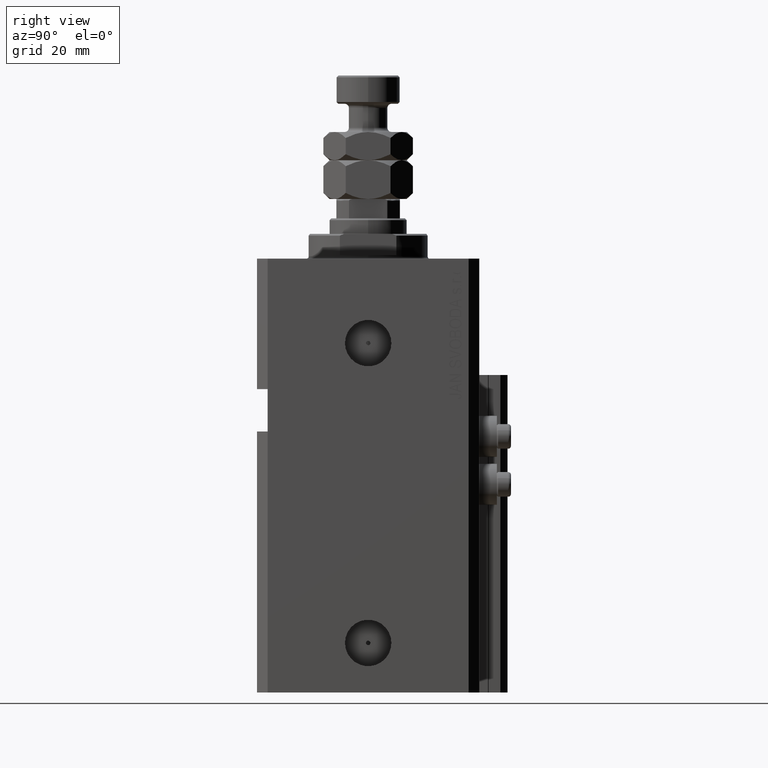
[diagram: clean part render]
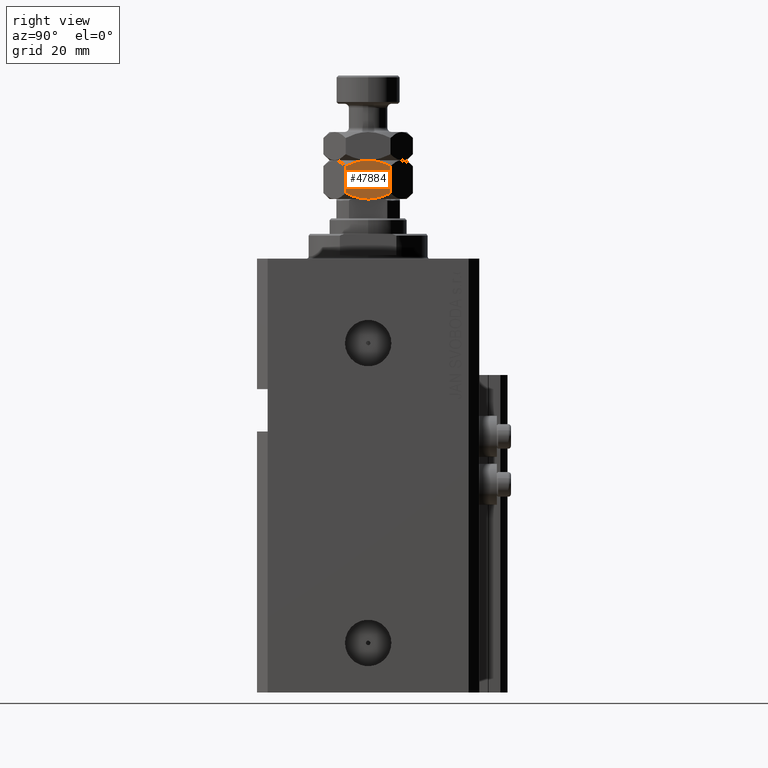
[diagram: same view with one face highlighted and labeled with its STEP entity id]
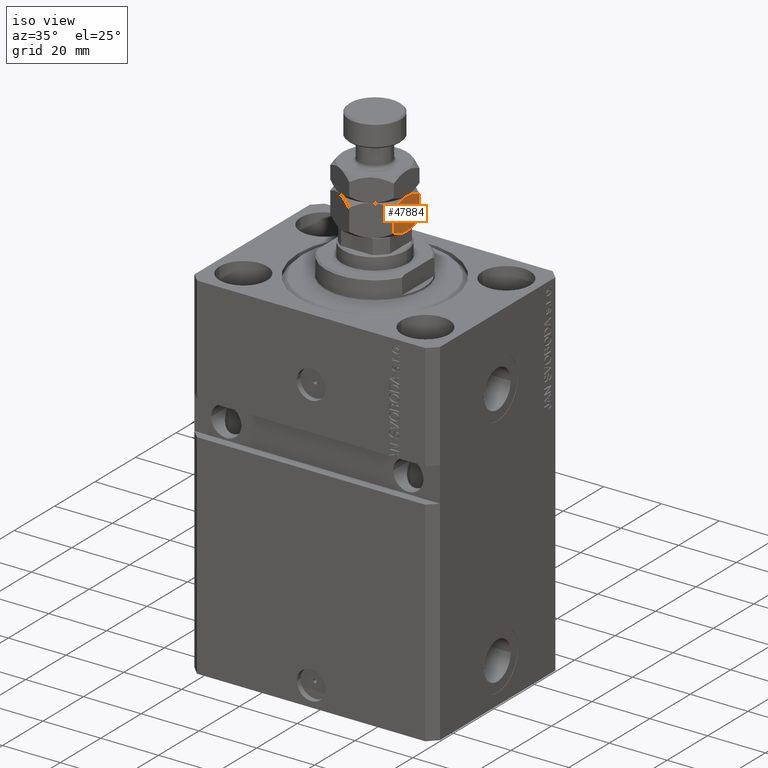
[diagram: same view with one face highlighted and labeled with its STEP entity id]
A machine part, right view. The second image highlights one B-rep face of the part: STEP entity #47884.
A second angle (iso view) of the same face is appended — the face is thin or edge-on in the first view.
In plain terms, the highlighted planar face has unit normal (-1, 0, 0).
Its self-contained STEP definition (entity closure, byte-faithful):
#121 = CARTESIAN_POINT ( 'NONE',  ( 11.00000000000000000, -6.350852961085885262, 1.701705922171761864 ) ) ;
#1804 = CARTESIAN_POINT ( 'NONE',  ( 10.99999999999999467, 0.000000000000000000, 11.00000000000000000 ) ) ;
#2455 = CARTESIAN_POINT ( 'NONE',  ( 10.99999999999999822, 4.323029509133802684, 0.8096537352537666044 ) ) ;
#2691 = CARTESIAN_POINT ( 'NONE',  ( 11.00000000000000000, 3.802713407336413276, 0.6276910765349043020 ) ) ;
#2793 = CARTESIAN_POINT ( 'NONE',  ( 10.99999999999999645, -2.189438957741031366, 0.2028253662507153998 ) ) ;
#2855 = CARTESIAN_POINT ( 'NONE',  ( 10.99999999999999822, 5.363576505757325918, 9.791932305492514033 ) ) ;
#3403 = DIRECTION ( 'NONE',  ( -1.000000000000000000, 0.000000000000000000, 0.000000000000000000 ) ) ;
#3792 = CARTESIAN_POINT ( 'NONE',  ( 11.00000000000000000, 6.350852961085883486, 11.00000000000000000 ) ) ;
#5575 = B_SPLINE_CURVE_WITH_KNOTS ( 'NONE', 3,
 ( #43818, #14172, #36079, #2455, #2691, #13427, #36811, #5699, #44060, #6691, #47310, #40571 ),
 .UNSPECIFIED., .F., .F.,
 ( 4, 2, 2, 2, 2, 4 ),
 ( 0.01886453216956117396, 0.02051917601608021016, 0.02217381986259924290, 0.02382846370911827910, 0.02465578563237779547, 0.02548310755563731184 ),
 .UNSPECIFIED. ) ;
#5699 = CARTESIAN_POINT ( 'NONE',  ( 11.00000000000000178, 1.381217716854154398, 0.08304699151390024237 ) ) ;
#5775 = ORIENTED_EDGE ( 'NONE', *, *, #40605, .F. ) ;
#6102 = VERTEX_POINT ( 'NONE', #17598 ) ;
#6297 = CARTESIAN_POINT ( 'NONE',  ( 11.00000000000000000, -6.350852961085885262, 1.701705922171761864 ) ) ;
#6691 = CARTESIAN_POINT ( 'NONE',  ( 10.99999999999999822, 0.5501206218979356466, 0.01029861699449337656 ) ) ;
#6776 = EDGE_CURVE ( 'NONE', #30818, #40377, #5575, .T. ) ;
#8566 = CARTESIAN_POINT ( 'NONE',  ( 11.00000000000000178, -0.5501206218979368678, 10.98970138300551191 ) ) ;
#9049 = CARTESIAN_POINT ( 'NONE',  ( 11.00000000000000178, -5.349315167928747172, 9.777295308501312121 ) ) ;
#9233 = EDGE_CURVE ( 'NONE', #40377, #30566, #30418, .T. ) ;
#10584 = CARTESIAN_POINT ( 'NONE',  ( 11.00000000000000000, 6.350852961085883486, 9.298294077828240134 ) ) ;
#12116 = FACE_OUTER_BOUND ( 'NONE', #48016, .T. ) ;
#13427 = CARTESIAN_POINT ( 'NONE',  ( 11.00000000000000000, 2.743986917173864448, 0.3257244675391384736 ) ) ;
#14172 = CARTESIAN_POINT ( 'NONE',  ( 11.00000000000000178, 5.856287164594785821, 1.454423023926191938 ) ) ;
#14519 = CARTESIAN_POINT ( 'NONE',  ( 11.00000000000000178, -4.344649988696088094, 0.7819333922108973045 ) ) ;
#14829 = CARTESIAN_POINT ( 'NONE',  ( 11.00000000000000178, 4.344649988696087206, 10.21806660778910114 ) ) ;
#14955 = LINE ( 'NONE', #45336, #33007 ) ;
#15076 = CARTESIAN_POINT ( 'NONE',  ( 10.99999999999999467, 0.000000000000000000, 11.00000000000000000 ) ) ;
#16276 = CARTESIAN_POINT ( 'NONE',  ( 11.00000000000000000, -1.102880524211969027, 10.94828572630293273 ) ) ;
#16781 = CARTESIAN_POINT ( 'NONE',  ( 10.99999999999999822, -0.5516605423237674888, 3.811648262644349985E-18 ) ) ;
#16855 = ORIENTED_EDGE ( 'NONE', *, *, #9233, .F. ) ;
#17263 = CARTESIAN_POINT ( 'NONE',  ( 10.99999999999999822, -2.205563362884370271, 10.79423439979603039 ) ) ;
#17598 = CARTESIAN_POINT ( 'NONE',  ( 11.00000000000000000, 6.350852961085883486, 9.298294077828240134 ) ) ;
#18070 = CARTESIAN_POINT ( 'NONE',  ( 11.00000000000000178, 1.099784029505284533, 10.95829822225798189 ) ) ;
#18556 = CARTESIAN_POINT ( 'NONE',  ( 11.00000000000000178, 0.5516605423237666006, 11.00000000000000355 ) ) ;
#19004 = DIRECTION ( 'NONE',  ( -0.000000000000000000, -0.000000000000000000, -1.000000000000000000 ) ) ;
#20993 = CARTESIAN_POINT ( 'NONE',  ( 11.00000000000000355, -2.743986917173864892, 10.67427553246086447 ) ) ;
#21368 = CARTESIAN_POINT ( 'NONE',  ( 10.99999999999999467, 0.000000000000000000, 11.00000000000000000 ) ) ;
#23844 = VECTOR ( 'NONE', #19004, 1000.000000000000000 ) ;
#24078 = EDGE_CURVE ( 'NONE', #6102, #30818, #45414, .T. ) ;
#27295 = PLANE ( 'NONE',  #34081 ) ;
#27672 = ORIENTED_EDGE ( 'NONE', *, *, #6776, .F. ) ;
#27897 = ORIENTED_EDGE ( 'NONE', *, *, #41788, .F. ) ;
#28463 = CARTESIAN_POINT ( 'NONE',  ( 11.00000000000000000, -0.2746235576716405391, 11.00000000000000355 ) ) ;
#28746 = ORIENTED_EDGE ( 'NONE', *, *, #24078, .F. ) ;
#30261 = CARTESIAN_POINT ( 'NONE',  ( 10.99999999999999822, 2.189438957741029590, 10.79717463374928421 ) ) ;
#30418 = B_SPLINE_CURVE_WITH_KNOTS ( 'NONE', 3,
 ( #35690, #16781, #48639, #2793, #36914, #14519, #40416, #6297 ),
 .UNSPECIFIED., .F., .F.,
 ( 4, 2, 2, 4 ),
 ( 0.02548310755563731184, 0.02714502201312677179, 0.02880693647061623175, 0.03213076538559515166 ),
 .UNSPECIFIED. ) ;
#30566 = VERTEX_POINT ( 'NONE', #121 ) ;
#30732 = CARTESIAN_POINT ( 'NONE',  ( 11.00000000000000000, -6.350852961085885262, 9.298294077828238358 ) ) ;
#30818 = VERTEX_POINT ( 'NONE', #33873 ) ;
#33007 = VECTOR ( 'NONE', #45092, 1000.000000000000000 ) ;
#33873 = CARTESIAN_POINT ( 'NONE',  ( 11.00000000000000000, 6.350852961085883486, 1.701705922171761198 ) ) ;
#34081 = AXIS2_PLACEMENT_3D ( 'NONE', #37536, #3403, #47220 ) ;
#35690 = CARTESIAN_POINT ( 'NONE',  ( 11.00000000000000000, 0.000000000000000000, 0.000000000000000000 ) ) ;
#36079 = CARTESIAN_POINT ( 'NONE',  ( 11.00000000000000000, 5.349315167928744508, 1.222704691498689877 ) ) ;
#36811 = CARTESIAN_POINT ( 'NONE',  ( 11.00000000000000000, 2.205563362884370715, 0.2057656002039678633 ) ) ;
#36914 = CARTESIAN_POINT ( 'NONE',  ( 11.00000000000000000, -2.731989201781026111, 0.3224669455115847794 ) ) ;
#37536 = CARTESIAN_POINT ( 'NONE',  ( 11.00000000000000000, -6.350852961085885262, 11.00000000000000000 ) ) ;
#37961 = VERTEX_POINT ( 'NONE', #21368 ) ;
#37970 = CARTESIAN_POINT ( 'NONE',  ( 11.00000000000000000, 2.731989201781026555, 10.67753305448841772 ) ) ;
#38558 = EDGE_CURVE ( 'NONE', #44422, #30566, #14955, .T. ) ;
#39410 = CARTESIAN_POINT ( 'NONE',  ( 10.99999999999999822, -5.856287164594791150, 9.545576976073807174 ) ) ;
#39532 = CARTESIAN_POINT ( 'NONE',  ( 11.00000000000000000, 0.000000000000000000, 0.000000000000000000 ) ) ;
#39625 = B_SPLINE_CURVE_WITH_KNOTS ( 'NONE', 3,
 ( #15076, #18556, #18070, #30261, #37970, #14829, #2855, #10584 ),
 .UNSPECIFIED., .F., .F.,
 ( 4, 2, 2, 4 ),
 ( 0.02548310755563731531, 0.02714502201312677526, 0.02880693647061623522, 0.03213076538559515860 ),
 .UNSPECIFIED. ) ;
#39821 = B_SPLINE_CURVE_WITH_KNOTS ( 'NONE', 3,
 ( #30732, #39410, #9049, #47651, #47148, #20993, #17263, #43407, #16276, #8566, #28463, #1804 ),
 .UNSPECIFIED., .F., .F.,
 ( 4, 2, 2, 2, 2, 4 ),
 ( 0.01886453216956117396, 0.02051917601608021016, 0.02217381986259924637, 0.02382846370911827910, 0.02465578563237779547, 0.02548310755563731531 ),
 .UNSPECIFIED. ) ;
#40377 = VERTEX_POINT ( 'NONE', #39532 ) ;
#40416 = CARTESIAN_POINT ( 'NONE',  ( 11.00000000000000000, -5.363576505757326807, 1.208067694507484413 ) ) ;
#40571 = CARTESIAN_POINT ( 'NONE',  ( 11.00000000000000000, 0.000000000000000000, 0.000000000000000000 ) ) ;
#40605 = EDGE_CURVE ( 'NONE', #44422, #37961, #39821, .T. ) ;
#41788 = EDGE_CURVE ( 'NONE', #37961, #6102, #39625, .T. ) ;
#43407 = CARTESIAN_POINT ( 'NONE',  ( 11.00000000000000178, -1.381217716854154398, 10.91695300848610017 ) ) ;
#43818 = CARTESIAN_POINT ( 'NONE',  ( 11.00000000000000000, 6.350852961085883486, 1.701705922171761198 ) ) ;
#44060 = CARTESIAN_POINT ( 'NONE',  ( 11.00000000000000000, 1.102880524211967916, 0.05171427369706949051 ) ) ;
#44422 = VERTEX_POINT ( 'NONE', #46272 ) ;
#45092 = DIRECTION ( 'NONE',  ( -0.000000000000000000, -0.000000000000000000, -1.000000000000000000 ) ) ;
#45336 = CARTESIAN_POINT ( 'NONE',  ( 11.00000000000000000, -6.350852961085885262, 11.00000000000000000 ) ) ;
#45414 = LINE ( 'NONE', #3792, #23844 ) ;
#46272 = CARTESIAN_POINT ( 'NONE',  ( 11.00000000000000000, -6.350852961085885262, 9.298294077828238358 ) ) ;
#47148 = CARTESIAN_POINT ( 'NONE',  ( 11.00000000000000000, -3.802713407336412832, 10.37230892346509847 ) ) ;
#47220 = DIRECTION ( 'NONE',  ( 0.000000000000000000, 0.000000000000000000, 1.000000000000000000 ) ) ;
#47310 = CARTESIAN_POINT ( 'NONE',  ( 10.99999999999999822, 0.2746235576716393179, 8.470329472542994146E-18 ) ) ;
#47651 = CARTESIAN_POINT ( 'NONE',  ( 10.99999999999999822, -4.323029509133800907, 10.19034626474623551 ) ) ;
#47884 = ADVANCED_FACE ( 'NONE', ( #12116 ), #27295, .F. ) ;
#47908 = ORIENTED_EDGE ( 'NONE', *, *, #38558, .T. ) ;
#48016 = EDGE_LOOP ( 'NONE', ( #27672, #28746, #27897, #5775, #47908, #16855 ) ) ;
#48639 = CARTESIAN_POINT ( 'NONE',  ( 11.00000000000000178, -1.099784029505286975, 0.04170177774201815762 ) ) ;